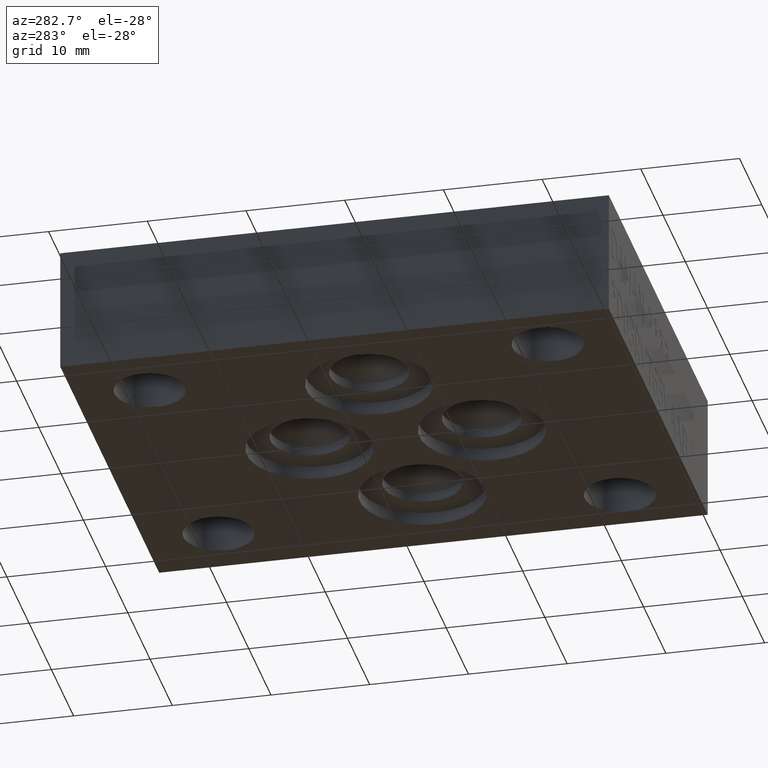
[diagram: clean part render]
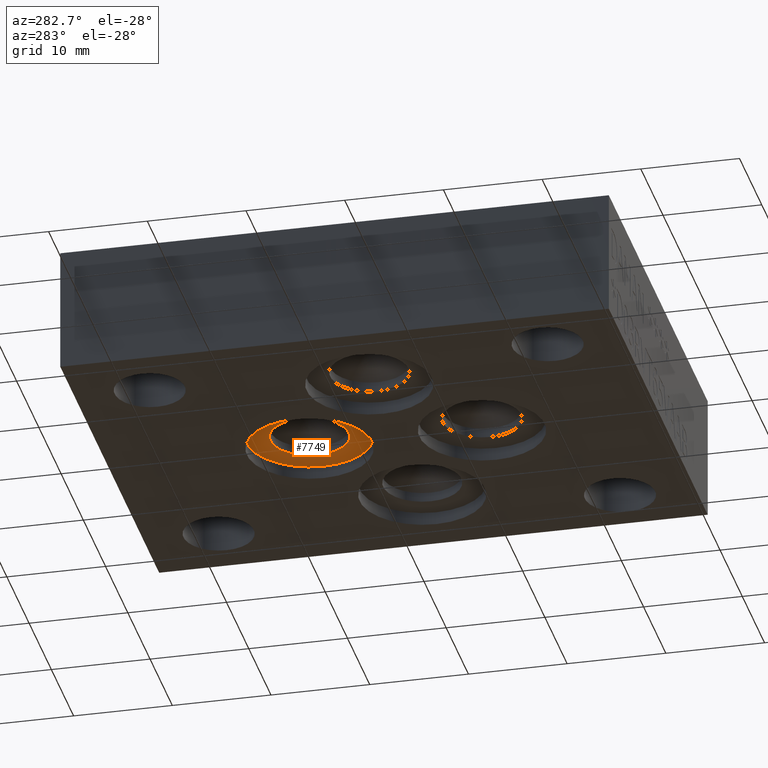
[diagram: same view with one face highlighted and labeled with its STEP entity id]
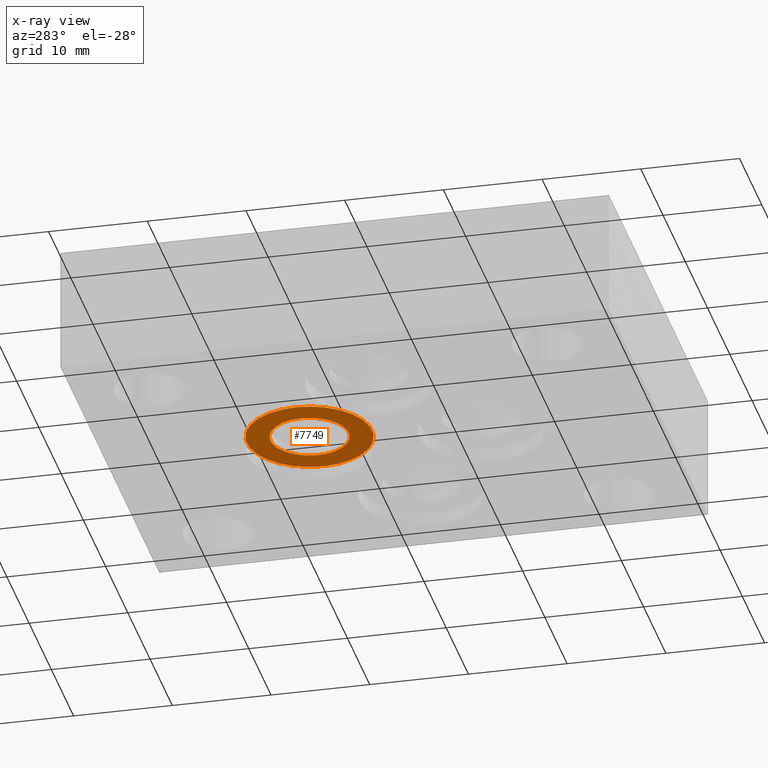
[diagram: x-ray of the same camera — body ghosted, the highlighted face saturated]
A machine part, auxiliary view. The second image highlights one B-rep face of the part: STEP entity #7749.
The next image is the same camera in x-ray: the body ghosted, the highlighted face saturated — about 0% of this face is hidden behind the body in this view.
In plain terms, the highlighted planar face has unit normal (0, 0, -1).
Its self-contained STEP definition (entity closure, byte-faithful):
#33=CIRCLE('',#8070,6.35);
#34=CIRCLE('',#8072,3.9624);
#408=FACE_BOUND('',#1220,.T.);
#791=FACE_OUTER_BOUND('',#1219,.T.);
#1219=EDGE_LOOP('',(#6642));
#1220=EDGE_LOOP('',(#6643));
#3572=VERTEX_POINT('',#12932);
#3573=VERTEX_POINT('',#12936);
#4608=EDGE_CURVE('',#3572,#3572,#33,.T.);
#4609=EDGE_CURVE('',#3573,#3573,#34,.T.);
#6642=ORIENTED_EDGE('',*,*,#4608,.T.);
#6643=ORIENTED_EDGE('',*,*,#4609,.F.);
#7029=PLANE('',#8071);
#7749=ADVANCED_FACE('',(#791,#408),#7029,.T.);
#8070=AXIS2_PLACEMENT_3D('',#12934,#9464,#9465);
#8071=AXIS2_PLACEMENT_3D('',#12935,#9466,#9467);
#8072=AXIS2_PLACEMENT_3D('',#12937,#9468,#9469);
#9464=DIRECTION('center_axis',(0.,0.,-1.));
#9465=DIRECTION('ref_axis',(1.,0.,0.));
#9466=DIRECTION('center_axis',(0.,0.,-1.));
#9467=DIRECTION('ref_axis',(1.,0.,0.));
#9468=DIRECTION('center_axis',(0.,0.,-1.));
#9469=DIRECTION('ref_axis',(1.,0.,0.));
#12932=CARTESIAN_POINT('',(15.875,35.3314,1.3208));
#12934=CARTESIAN_POINT('Origin',(22.225,35.3314,1.3208));
#12935=CARTESIAN_POINT('Origin',(22.225,35.3314,1.3208));
#12936=CARTESIAN_POINT('',(18.2626,35.3314,1.3208));
#12937=CARTESIAN_POINT('Origin',(22.225,35.3314,1.3208));